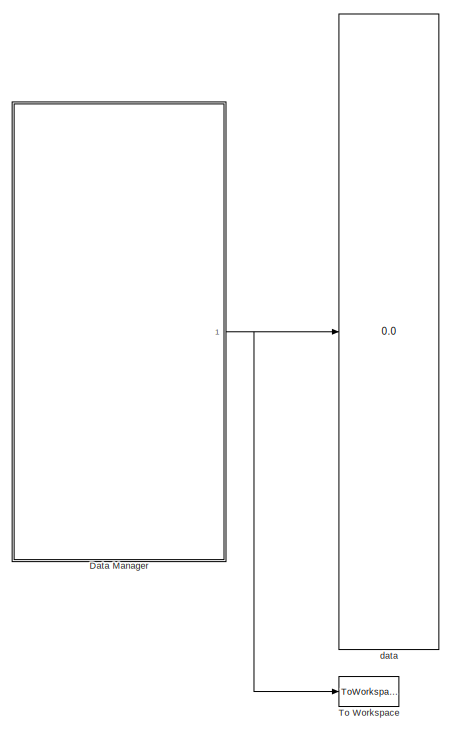
[diagram: root canvas - part 1/3, left side, full height]
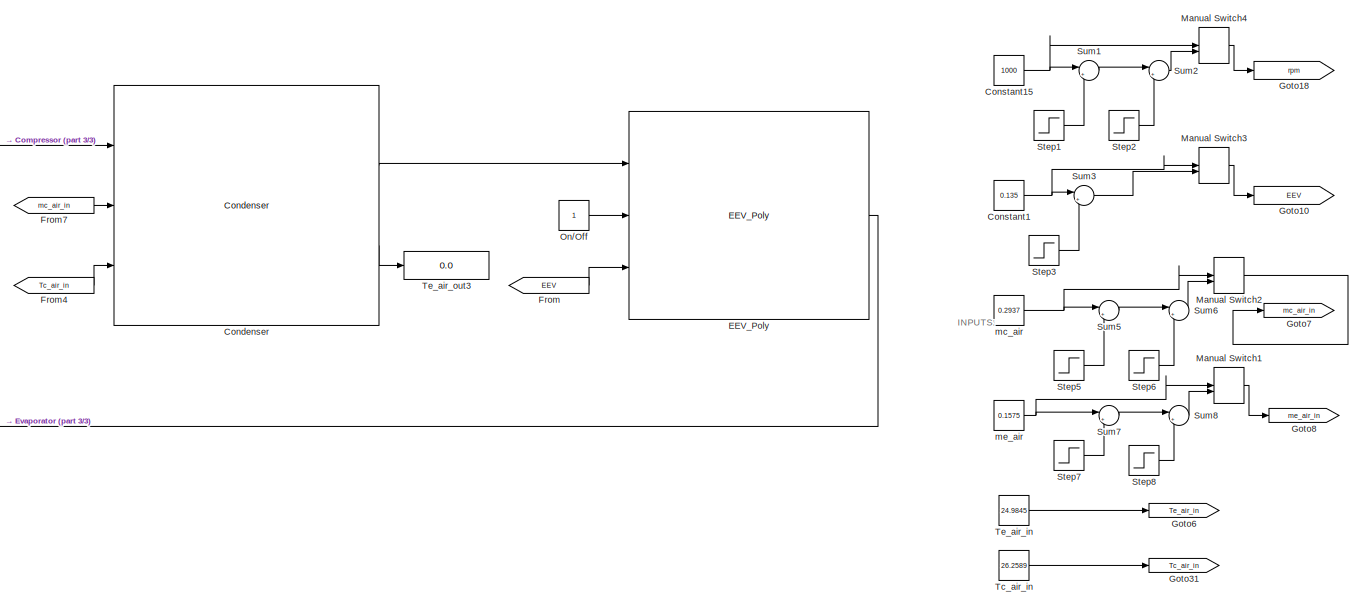
[diagram: root canvas - part 2/3, right side, full height]
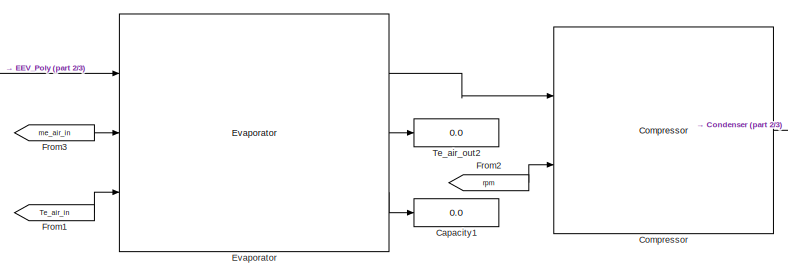
[diagram: root canvas - part 3/3, central region]
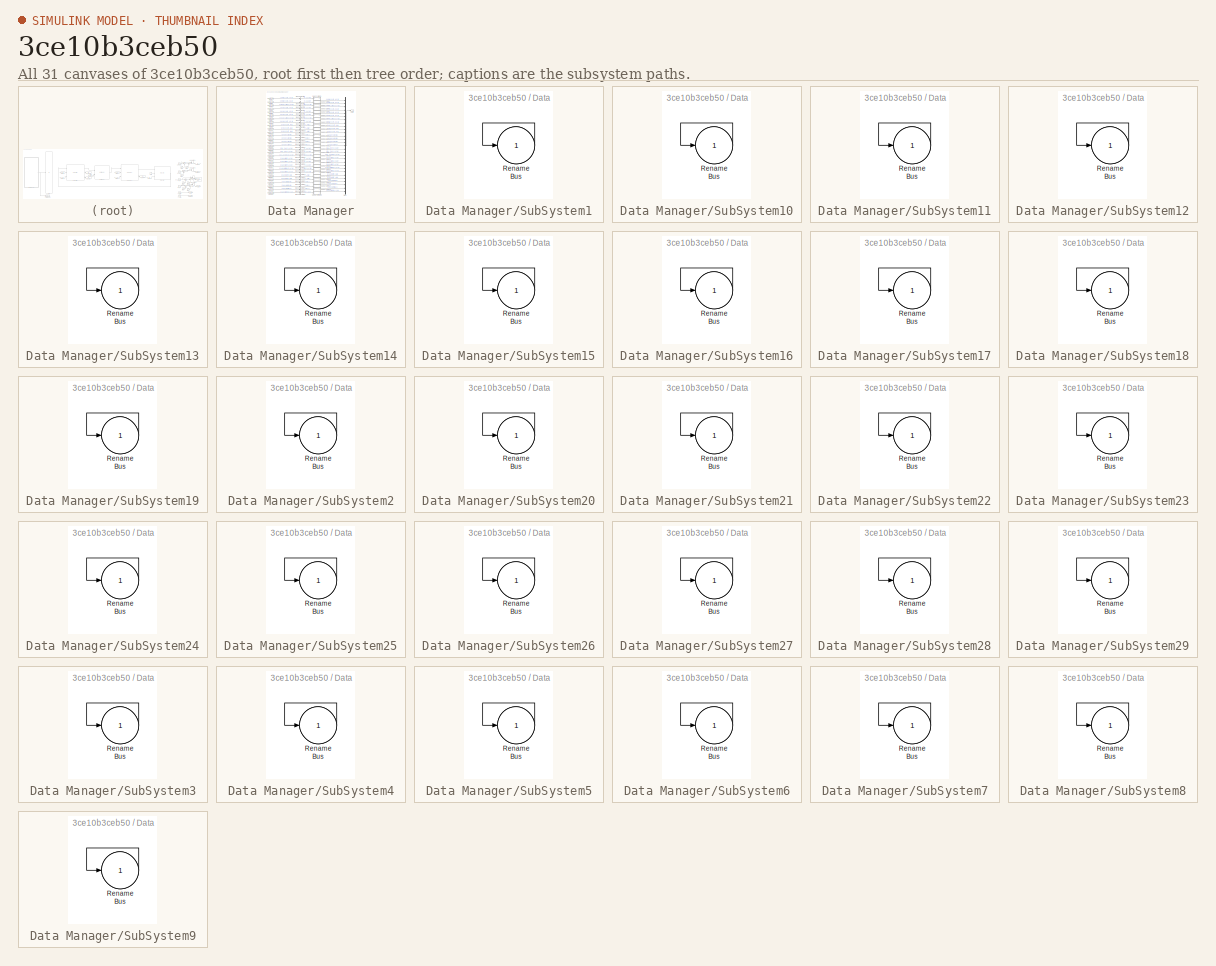
[diagram: thumbnail index - all 31 canvases of the model, root first then tree order]
MODEL slx_3ce10b3ceb50
KIND model
BLOCK [Display] Capacity1
  Decimation = 1
  Ports = [1]
BLOCK [Reference] Compressor  REF=thermosys/Components/Compressor
  CFile = CompProp
  HTC = 25
  IODS = Text
  Pk_ri = 279.1497
  Pk_ro = 968.3655
  Ports = [2, 1]
  REFR = R134a
  SourceBlock = thermosys/Components/Compressor
  SourceType = Variable Speed Compressor
  Tk_ri = 19.9747
  Tk_ro = 61.4005
  Vk = 3.042e-5
  mdot = 0.0062
  rpm = 1500
BLOCK [Reference] Condenser  REF=thermosys/Components/Condenser
  AIT = 25
  Ac_air = .089798964
  Ac_ref = 5.15631e-5
  As_air = 2.792665382
  As_ref = 0.274993
  Cp_wall = .0467
  Dh = 8.1026e-3
  IODS = Text
  L = 10.6895
  MFA = 0.2937
  MFR = 0.0062
  M_wall = 4.65636
  N = 1
  PAF_AIR = 1.2
  PAF_SC = 1
  PAF_SH = 0.5
  PAF_TP = 1
  PREF = 968
  Ports = [3, 2]
  REFR = R134a
  RIT = 61.8
  ROE = 250
  SourceBlock = thermosys/Components/Condenser
  SourceType = Switched State Space Condenser
BLOCK [Constant] Constant1
  Value = 0.135
BLOCK [Constant] Constant15
  Value = 1000
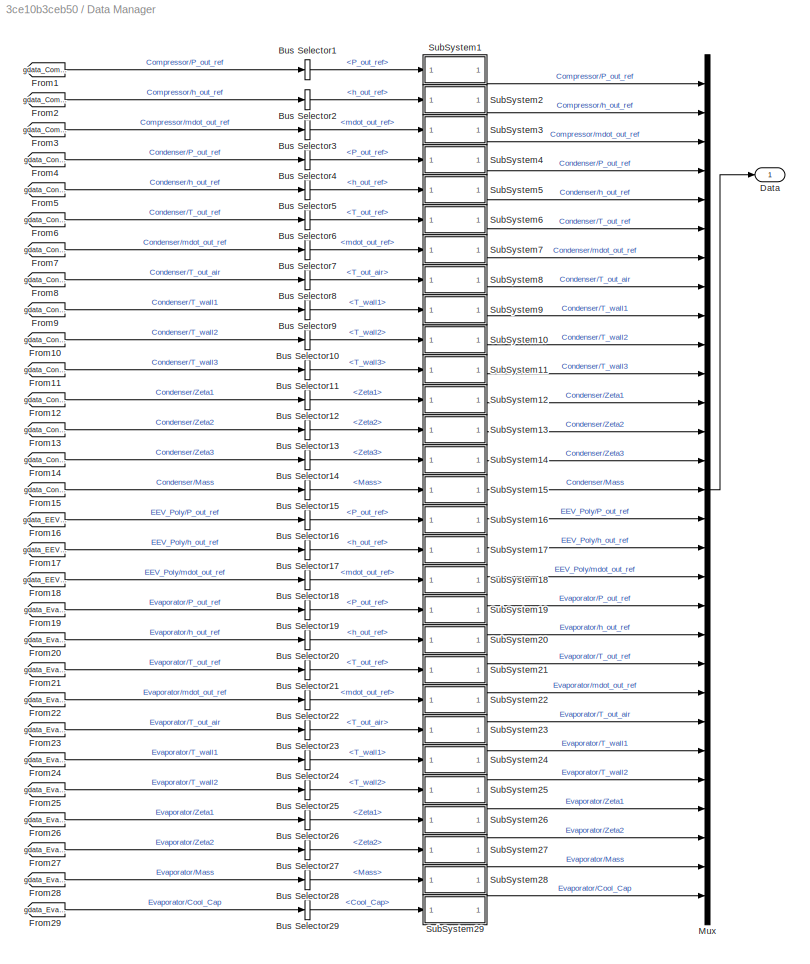
BLOCK [SubSystem] Data Manager
  AncestorBlock = thermosys/Support Components/Data Manager
  OpenFcn = data_manager
  Ports = [0, 1]
  RequestExecContextInheritance = off
  UserDataPersistent = on
BLOCK [BusSelector] Data Manager/Bus Selector1
  OutputSignals = P_out_ref
  Ports = [1, 1]
BLOCK [BusSelector] Data Manager/Bus Selector10
  OutputSignals = T_wall2
  Ports = [1, 1]
BLOCK [BusSelector] Data Manager/Bus Selector11
  OutputSignals = T_wall3
  Ports = [1, 1]
BLOCK [BusSelector] Data Manager/Bus Selector12
  OutputSignals = Zeta1
  Ports = [1, 1]
BLOCK [BusSelector] Data Manager/Bus Selector13
  OutputSignals = Zeta2
  Ports = [1, 1]
BLOCK [BusSelector] Data Manager/Bus Selector14
  OutputSignals = Zeta3
  Ports = [1, 1]
BLOCK [BusSelector] Data Manager/Bus Selector15
  OutputSignals = Mass
  Ports = [1, 1]
BLOCK [BusSelector] Data Manager/Bus Selector16
  OutputSignals = P_out_ref
  Ports = [1, 1]
BLOCK [BusSelector] Data Manager/Bus Selector17
  OutputSignals = h_out_ref
  Ports = [1, 1]
BLOCK [BusSelector] Data Manager/Bus Selector18
  OutputSignals = mdot_out_ref
  Ports = [1, 1]
BLOCK [BusSelector] Data Manager/Bus Selector19
  OutputSignals = P_out_ref
  Ports = [1, 1]
BLOCK [BusSelector] Data Manager/Bus Selector2
  OutputSignals = h_out_ref
  Ports = [1, 1]
BLOCK [BusSelector] Data Manager/Bus Selector20
  OutputSignals = h_out_ref
  Ports = [1, 1]
BLOCK [BusSelector] Data Manager/Bus Selector21
  OutputSignals = T_out_ref
  Ports = [1, 1]
BLOCK [BusSelector] Data Manager/Bus Selector22
  OutputSignals = mdot_out_ref
  Ports = [1, 1]
BLOCK [BusSelector] Data Manager/Bus Selector23
  OutputSignals = T_out_air
  Ports = [1, 1]
BLOCK [BusSelector] Data Manager/Bus Selector24
  OutputSignals = T_wall1
  Ports = [1, 1]
BLOCK [BusSelector] Data Manager/Bus Selector25
  OutputSignals = T_wall2
  Ports = [1, 1]
BLOCK [BusSelector] Data Manager/Bus Selector26
  OutputSignals = Zeta1
  Ports = [1, 1]
BLOCK [BusSelector] Data Manager/Bus Selector27
  OutputSignals = Zeta2
  Ports = [1, 1]
BLOCK [BusSelector] Data Manager/Bus Selector28
  OutputSignals = Mass
  Ports = [1, 1]
BLOCK [BusSelector] Data Manager/Bus Selector29
  OutputSignals = Cool_Cap
  Ports = [1, 1]
BLOCK [BusSelector] Data Manager/Bus Selector3
  OutputSignals = mdot_out_ref
  Ports = [1, 1]
BLOCK [BusSelector] Data Manager/Bus Selector4
  OutputSignals = P_out_ref
  Ports = [1, 1]
BLOCK [BusSelector] Data Manager/Bus Selector5
  OutputSignals = h_out_ref
  Ports = [1, 1]
BLOCK [BusSelector] Data Manager/Bus Selector6
  OutputSignals = T_out_ref
  Ports = [1, 1]
BLOCK [BusSelector] Data Manager/Bus Selector7
  OutputSignals = mdot_out_ref
  Ports = [1, 1]
BLOCK [BusSelector] Data Manager/Bus Selector8
  OutputSignals = T_out_air
  Ports = [1, 1]
BLOCK [BusSelector] Data Manager/Bus Selector9
  OutputSignals = T_wall1
  Ports = [1, 1]
BLOCK [Outport] Data Manager/Data
  IconDisplay = Port number
BLOCK [From] Data Manager/From1
  GotoTag = gdata_CompressorData_Sink
  TagVisibility = global
  UserDataPersistent = on
BLOCK [From] Data Manager/From10
  GotoTag = gdata_CondenserData_Sink1
  TagVisibility = global
  UserDataPersistent = on
BLOCK [From] Data Manager/From11
  GotoTag = gdata_CondenserData_Sink1
  TagVisibility = global
  UserDataPersistent = on
BLOCK [From] Data Manager/From12
  GotoTag = gdata_CondenserData_Sink1
  TagVisibility = global
  UserDataPersistent = on
BLOCK [From] Data Manager/From13
  GotoTag = gdata_CondenserData_Sink1
  TagVisibility = global
  UserDataPersistent = on
BLOCK [From] Data Manager/From14
  GotoTag = gdata_CondenserData_Sink1
  TagVisibility = global
  UserDataPersistent = on
BLOCK [From] Data Manager/From15
  GotoTag = gdata_CondenserData_Sink1
  TagVisibility = global
  UserDataPersistent = on
BLOCK [From] Data Manager/From16
  GotoTag = gdata_EEV_PolyData_Sink1
  TagVisibility = global
  UserDataPersistent = on
BLOCK [From] Data Manager/From17
  GotoTag = gdata_EEV_PolyData_Sink1
  TagVisibility = global
  UserDataPersistent = on
BLOCK [From] Data Manager/From18
  GotoTag = gdata_EEV_PolyData_Sink1
  TagVisibility = global
  UserDataPersistent = on
BLOCK [From] Data Manager/From19
  GotoTag = gdata_EvaporatorData_Sink1
  TagVisibility = global
  UserDataPersistent = on
BLOCK [From] Data Manager/From2
  GotoTag = gdata_CompressorData_Sink
  TagVisibility = global
  UserDataPersistent = on
BLOCK [From] Data Manager/From20
  GotoTag = gdata_EvaporatorData_Sink1
  TagVisibility = global
  UserDataPersistent = on
BLOCK [From] Data Manager/From21
  GotoTag = gdata_EvaporatorData_Sink1
  TagVisibility = global
  UserDataPersistent = on
BLOCK [From] Data Manager/From22
  GotoTag = gdata_EvaporatorData_Sink1
  TagVisibility = global
  UserDataPersistent = on
BLOCK [From] Data Manager/From23
  GotoTag = gdata_EvaporatorData_Sink1
  TagVisibility = global
  UserDataPersistent = on
BLOCK [From] Data Manager/From24
  GotoTag = gdata_EvaporatorData_Sink1
  TagVisibility = global
  UserDataPersistent = on
BLOCK [From] Data Manager/From25
  GotoTag = gdata_EvaporatorData_Sink1
  TagVisibility = global
  UserDataPersistent = on
BLOCK [From] Data Manager/From26
  GotoTag = gdata_EvaporatorData_Sink1
  TagVisibility = global
  UserDataPersistent = on
BLOCK [From] Data Manager/From27
  GotoTag = gdata_EvaporatorData_Sink1
  TagVisibility = global
  UserDataPersistent = on
BLOCK [From] Data Manager/From28
  GotoTag = gdata_EvaporatorData_Sink1
  TagVisibility = global
  UserDataPersistent = on
BLOCK [From] Data Manager/From29
  GotoTag = gdata_EvaporatorData_Sink1
  TagVisibility = global
  UserDataPersistent = on
BLOCK [From] Data Manager/From3
  GotoTag = gdata_CompressorData_Sink
  TagVisibility = global
  UserDataPersistent = on
BLOCK [From] Data Manager/From4
  GotoTag = gdata_CondenserData_Sink1
  TagVisibility = global
  UserDataPersistent = on
BLOCK [From] Data Manager/From5
  GotoTag = gdata_CondenserData_Sink1
  TagVisibility = global
  UserDataPersistent = on
BLOCK [From] Data Manager/From6
  GotoTag = gdata_CondenserData_Sink1
  TagVisibility = global
  UserDataPersistent = on
BLOCK [From] Data Manager/From7
  GotoTag = gdata_CondenserData_Sink1
  TagVisibility = global
  UserDataPersistent = on
BLOCK [From] Data Manager/From8
  GotoTag = gdata_CondenserData_Sink1
  TagVisibility = global
  UserDataPersistent = on
BLOCK [From] Data Manager/From9
  GotoTag = gdata_CondenserData_Sink1
  TagVisibility = global
  UserDataPersistent = on
BLOCK [Mux] Data Manager/Mux
  DisplayOption = bar
  Inputs = 29
  Ports = [29, 1]
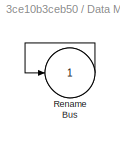
BLOCK [SubSystem] Data Manager/SubSystem1
  Ports = [1, 1]
  RequestExecContextInheritance = off
BLOCK [Outport] Data Manager/SubSystem1/Bus
  IconDisplay = Port number
BLOCK [Inport] Data Manager/SubSystem1/Rename
  IconDisplay = Port number
BLOCK [SubSystem] Data Manager/SubSystem10
  Ports = [1, 1]
  RequestExecContextInheritance = off
BLOCK [Outport] Data Manager/SubSystem10/Bus
  IconDisplay = Port number
BLOCK [Inport] Data Manager/SubSystem10/Rename
  IconDisplay = Port number
BLOCK [SubSystem] Data Manager/SubSystem11
  Ports = [1, 1]
  RequestExecContextInheritance = off
BLOCK [Outport] Data Manager/SubSystem11/Bus
  IconDisplay = Port number
BLOCK [Inport] Data Manager/SubSystem11/Rename
  IconDisplay = Port number
BLOCK [SubSystem] Data Manager/SubSystem12
  Ports = [1, 1]
  RequestExecContextInheritance = off
BLOCK [Outport] Data Manager/SubSystem12/Bus
  IconDisplay = Port number
BLOCK [Inport] Data Manager/SubSystem12/Rename
  IconDisplay = Port number
BLOCK [SubSystem] Data Manager/SubSystem13
  Ports = [1, 1]
  RequestExecContextInheritance = off
BLOCK [Outport] Data Manager/SubSystem13/Bus
  IconDisplay = Port number
BLOCK [Inport] Data Manager/SubSystem13/Rename
  IconDisplay = Port number
BLOCK [SubSystem] Data Manager/SubSystem14
  Ports = [1, 1]
  RequestExecContextInheritance = off
BLOCK [Outport] Data Manager/SubSystem14/Bus
  IconDisplay = Port number
BLOCK [Inport] Data Manager/SubSystem14/Rename
  IconDisplay = Port number
BLOCK [SubSystem] Data Manager/SubSystem15
  Ports = [1, 1]
  RequestExecContextInheritance = off
BLOCK [Outport] Data Manager/SubSystem15/Bus
  IconDisplay = Port number
BLOCK [Inport] Data Manager/SubSystem15/Rename
  IconDisplay = Port number
BLOCK [SubSystem] Data Manager/SubSystem16
  Ports = [1, 1]
  RequestExecContextInheritance = off
BLOCK [Outport] Data Manager/SubSystem16/Bus
  IconDisplay = Port number
BLOCK [Inport] Data Manager/SubSystem16/Rename
  IconDisplay = Port number
BLOCK [SubSystem] Data Manager/SubSystem17
  Ports = [1, 1]
  RequestExecContextInheritance = off
BLOCK [Outport] Data Manager/SubSystem17/Bus
  IconDisplay = Port number
BLOCK [Inport] Data Manager/SubSystem17/Rename
  IconDisplay = Port number
BLOCK [SubSystem] Data Manager/SubSystem18
  Ports = [1, 1]
  RequestExecContextInheritance = off
BLOCK [Outport] Data Manager/SubSystem18/Bus
  IconDisplay = Port number
BLOCK [Inport] Data Manager/SubSystem18/Rename
  IconDisplay = Port number
BLOCK [SubSystem] Data Manager/SubSystem19
  Ports = [1, 1]
  RequestExecContextInheritance = off
BLOCK [Outport] Data Manager/SubSystem19/Bus
  IconDisplay = Port number
BLOCK [Inport] Data Manager/SubSystem19/Rename
  IconDisplay = Port number
BLOCK [SubSystem] Data Manager/SubSystem2
  Ports = [1, 1]
  RequestExecContextInheritance = off
BLOCK [Outport] Data Manager/SubSystem2/Bus
  IconDisplay = Port number
BLOCK [Inport] Data Manager/SubSystem2/Rename
  IconDisplay = Port number
BLOCK [SubSystem] Data Manager/SubSystem20
  Ports = [1, 1]
  RequestExecContextInheritance = off
BLOCK [Outport] Data Manager/SubSystem20/Bus
  IconDisplay = Port number
BLOCK [Inport] Data Manager/SubSystem20/Rename
  IconDisplay = Port number
BLOCK [SubSystem] Data Manager/SubSystem21
  Ports = [1, 1]
  RequestExecContextInheritance = off
BLOCK [Outport] Data Manager/SubSystem21/Bus
  IconDisplay = Port number
BLOCK [Inport] Data Manager/SubSystem21/Rename
  IconDisplay = Port number
BLOCK [SubSystem] Data Manager/SubSystem22
  Ports = [1, 1]
  RequestExecContextInheritance = off
BLOCK [Outport] Data Manager/SubSystem22/Bus
  IconDisplay = Port number
BLOCK [Inport] Data Manager/SubSystem22/Rename
  IconDisplay = Port number
BLOCK [SubSystem] Data Manager/SubSystem23
  Ports = [1, 1]
  RequestExecContextInheritance = off
BLOCK [Outport] Data Manager/SubSystem23/Bus
  IconDisplay = Port number
BLOCK [Inport] Data Manager/SubSystem23/Rename
  IconDisplay = Port number
BLOCK [SubSystem] Data Manager/SubSystem24
  Ports = [1, 1]
  RequestExecContextInheritance = off
BLOCK [Outport] Data Manager/SubSystem24/Bus
  IconDisplay = Port number
BLOCK [Inport] Data Manager/SubSystem24/Rename
  IconDisplay = Port number
BLOCK [SubSystem] Data Manager/SubSystem25
  Ports = [1, 1]
  RequestExecContextInheritance = off
BLOCK [Outport] Data Manager/SubSystem25/Bus
  IconDisplay = Port number
BLOCK [Inport] Data Manager/SubSystem25/Rename
  IconDisplay = Port number
BLOCK [SubSystem] Data Manager/SubSystem26
  Ports = [1, 1]
  RequestExecContextInheritance = off
BLOCK [Outport] Data Manager/SubSystem26/Bus
  IconDisplay = Port number
BLOCK [Inport] Data Manager/SubSystem26/Rename
  IconDisplay = Port number
BLOCK [SubSystem] Data Manager/SubSystem27
  Ports = [1, 1]
  RequestExecContextInheritance = off
BLOCK [Outport] Data Manager/SubSystem27/Bus
  IconDisplay = Port number
BLOCK [Inport] Data Manager/SubSystem27/Rename
  IconDisplay = Port number
BLOCK [SubSystem] Data Manager/SubSystem28
  Ports = [1, 1]
  RequestExecContextInheritance = off
BLOCK [Outport] Data Manager/SubSystem28/Bus
  IconDisplay = Port number
BLOCK [Inport] Data Manager/SubSystem28/Rename
  IconDisplay = Port number
BLOCK [SubSystem] Data Manager/SubSystem29
  Ports = [1, 1]
  RequestExecContextInheritance = off
BLOCK [Outport] Data Manager/SubSystem29/Bus
  IconDisplay = Port number
BLOCK [Inport] Data Manager/SubSystem29/Rename
  IconDisplay = Port number
BLOCK [SubSystem] Data Manager/SubSystem3
  Ports = [1, 1]
  RequestExecContextInheritance = off
BLOCK [Outport] Data Manager/SubSystem3/Bus
  IconDisplay = Port number
BLOCK [Inport] Data Manager/SubSystem3/Rename
  IconDisplay = Port number
BLOCK [SubSystem] Data Manager/SubSystem4
  Ports = [1, 1]
  RequestExecContextInheritance = off
BLOCK [Outport] Data Manager/SubSystem4/Bus
  IconDisplay = Port number
BLOCK [Inport] Data Manager/SubSystem4/Rename
  IconDisplay = Port number
BLOCK [SubSystem] Data Manager/SubSystem5
  Ports = [1, 1]
  RequestExecContextInheritance = off
BLOCK [Outport] Data Manager/SubSystem5/Bus
  IconDisplay = Port number
BLOCK [Inport] Data Manager/SubSystem5/Rename
  IconDisplay = Port number
BLOCK [SubSystem] Data Manager/SubSystem6
  Ports = [1, 1]
  RequestExecContextInheritance = off
BLOCK [Outport] Data Manager/SubSystem6/Bus
  IconDisplay = Port number
BLOCK [Inport] Data Manager/SubSystem6/Rename
  IconDisplay = Port number
BLOCK [SubSystem] Data Manager/SubSystem7
  Ports = [1, 1]
  RequestExecContextInheritance = off
BLOCK [Outport] Data Manager/SubSystem7/Bus
  IconDisplay = Port number
BLOCK [Inport] Data Manager/SubSystem7/Rename
  IconDisplay = Port number
BLOCK [SubSystem] Data Manager/SubSystem8
  Ports = [1, 1]
  RequestExecContextInheritance = off
BLOCK [Outport] Data Manager/SubSystem8/Bus
  IconDisplay = Port number
BLOCK [Inport] Data Manager/SubSystem8/Rename
  IconDisplay = Port number
BLOCK [SubSystem] Data Manager/SubSystem9
  Ports = [1, 1]
  RequestExecContextInheritance = off
BLOCK [Outport] Data Manager/SubSystem9/Bus
  IconDisplay = Port number
BLOCK [Inport] Data Manager/SubSystem9/Rename
  IconDisplay = Port number
BLOCK [Reference] EEV_Poly  REF=thermosys/Components/EEV_Poly
  IODS = Text
  Ports = [3, 1]
  REFR = R134a
  SourceBlock = thermosys/Components/EEV_Poly
  SourceType = EEV (Polynomial)
  cv_fraction = [0:0.1:1].*(2.0-[0:0.1:1])
  cv_max = 4e-5
  p1 = -2e-13
  p2 = 5.6e-13
  p3 = -5.8e-13
  p4 = 2.6e-13
  p5 = -1
  p6 = 2
  p7 = 1.1e-16
  stroke_fraction = [0:0.1:1]
BLOCK [Reference] Evaporator  REF=thermosys/Components/Evaporator
  AIT = 25
  Ac_air = .058384399
  Ac_ref = 5.15631e-5
  As_air = 3.068019456
  As_ref = .0291662649
  Cp_wall = 0.48772265
  Dh = 8.126e-3
  HREFIN = 245
  IODS = Text
  L = 11.45794
  MFA = 0.105
  MFR = 0.0062
  M_wall = 2.7438213
  N = 1
  PAF_AIR = 1.1
  PAF_SH = 2
  PAF_TP = 1
  PREF = 295.3
  Ports = [3, 3]
  REFR = R134a
  SourceBlock = thermosys/Components/Evaporator
  SourceType = Switched State Space Evaporator
  TRO = 12
BLOCK [From] From
  CloseFcn = tagdialog Close
  GotoTag = EEV
BLOCK [From] From1
  CloseFcn = tagdialog Close
  GotoTag = Te_air_in
BLOCK [From] From2
  CloseFcn = tagdialog Close
  GotoTag = rpm
BLOCK [From] From3
  CloseFcn = tagdialog Close
  GotoTag = me_air_in
BLOCK [From] From4
  CloseFcn = tagdialog Close
  GotoTag = Tc_air_in
BLOCK [From] From7
  CloseFcn = tagdialog Close
  GotoTag = mc_air_in
BLOCK [Goto] Goto10
  GotoTag = EEV
BLOCK [Goto] Goto18
  GotoTag = rpm
BLOCK [Goto] Goto31
  GotoTag = Tc_air_in
BLOCK [Goto] Goto6
  GotoTag = Te_air_in
BLOCK [Goto] Goto7
  GotoTag = mc_air_in
BLOCK [Goto] Goto8
  GotoTag = me_air_in
BLOCK [ManualSwitch] Manual Switch1
BLOCK [ManualSwitch] Manual Switch2
BLOCK [ManualSwitch] Manual Switch3
BLOCK [ManualSwitch] Manual Switch4
BLOCK [Constant] On//Off
BLOCK [Step] Step1
  After = -1500
  SampleTime = 0
  Time = 100
BLOCK [Step] Step2
  After = 1500
  SampleTime = 0
  Time = 500
BLOCK [Step] Step3
  After = -0.06
  SampleTime = 0
  Time = 100
BLOCK [Step] Step5
  After = -0.2937
  SampleTime = 0
  Time = 100
BLOCK [Step] Step6
  After = 0.2937
  SampleTime = 0
  Time = 500
BLOCK [Step] Step7
  After = -0.105
  SampleTime = 0
  Time = 100
BLOCK [Step] Step8
  After = 0.105
  SampleTime = 0
  Time = 500
BLOCK [Sum] Sum1
  IconShape = round
  InputSameDT = off
  Inputs = |++
  OutDataTypeStr = Inherit: Inherit via internal rule
  Ports = [2, 1]
  SaturateOnIntegerOverflow = off
BLOCK [Sum] Sum2
  IconShape = round
  InputSameDT = off
  Inputs = |++
  OutDataTypeStr = Inherit: Inherit via internal rule
  Ports = [2, 1]
  SaturateOnIntegerOverflow = off
BLOCK [Sum] Sum3
  IconShape = round
  InputSameDT = off
  Inputs = |++
  OutDataTypeStr = Inherit: Inherit via internal rule
  Ports = [2, 1]
  SaturateOnIntegerOverflow = off
BLOCK [Sum] Sum5
  IconShape = round
  InputSameDT = off
  Inputs = |++
  OutDataTypeStr = Inherit: Inherit via internal rule
  Ports = [2, 1]
  SaturateOnIntegerOverflow = off
BLOCK [Sum] Sum6
  IconShape = round
  InputSameDT = off
  Inputs = |++
  OutDataTypeStr = Inherit: Inherit via internal rule
  Ports = [2, 1]
  SaturateOnIntegerOverflow = off
BLOCK [Sum] Sum7
  IconShape = round
  InputSameDT = off
  Inputs = |++
  OutDataTypeStr = Inherit: Inherit via internal rule
  Ports = [2, 1]
  SaturateOnIntegerOverflow = off
BLOCK [Sum] Sum8
  IconShape = round
  InputSameDT = off
  Inputs = |++
  OutDataTypeStr = Inherit: Inherit via internal rule
  Ports = [2, 1]
  SaturateOnIntegerOverflow = off
BLOCK [Constant] Tc_air_in
  Value = 26.2589
BLOCK [Constant] Te_air_in
  Value = 24.9845
BLOCK [Display] Te_air_out2
  Decimation = 1
  Ports = [1]
BLOCK [Display] Te_air_out3
  Decimation = 1
  Ports = [1]
BLOCK [ToWorkspace] To Workspace
  FixptAsFi = on
  MaxDataPoints = inf
  Ports = [1]
  SampleTime = -1
  Save2DSignal = 3-D array (concatenate along third dimension)
  SaveFormat = Timeseries
  VariableName = simoutl135
BLOCK [Display] data
  Decimation = 1
  Ports = [1]
BLOCK [Constant] mc_air
  Value = 0.2937
BLOCK [Constant] me_air
  Value = 0.1575
ANNOTATION (root): INPUTS:
LINE Compressor:1 -> Condenser:1
LINE Condenser:1 -> EEV_Poly:1
LINE Condenser:2 -> Te_air_out3:1
NET Constant15:1 -> Manual Switch4:1, Sum1:1
NET Constant1:1 -> Manual Switch3:1, Sum3:1
NET Data Manager:1 -> To Workspace:1, data:1
LINE EEV_Poly:1 -> Evaporator:1
LINE Evaporator:1 -> Compressor:1
LINE Evaporator:2 -> Te_air_out2:1
LINE Evaporator:3 -> Capacity1:1
LINE From1:1 -> Evaporator:3
LINE From2:1 -> Compressor:2
LINE From3:1 -> Evaporator:2
LINE From4:1 -> Condenser:3
LINE From7:1 -> Condenser:2
LINE From:1 -> EEV_Poly:3
LINE Manual Switch1:1 -> Goto8:1
LINE Manual Switch2:1 -> Goto7:1
LINE Manual Switch3:1 -> Goto10:1
LINE Manual Switch4:1 -> Goto18:1
LINE On//Off:1 -> EEV_Poly:2
LINE Step1:1 -> Sum1:2
LINE Step2:1 -> Sum2:2
LINE Step3:1 -> Sum3:2
LINE Step5:1 -> Sum5:2
LINE Step6:1 -> Sum6:2
LINE Step7:1 -> Sum7:2
LINE Step8:1 -> Sum8:2
LINE Sum1:1 -> Sum2:1
LINE Sum2:1 -> Manual Switch4:2
LINE Sum3:1 -> Manual Switch3:2
LINE Sum5:1 -> Sum6:1
LINE Sum6:1 -> Manual Switch2:2
LINE Sum7:1 -> Sum8:1
LINE Sum8:1 -> Manual Switch1:2
LINE Tc_air_in:1 -> Goto31:1
LINE Te_air_in:1 -> Goto6:1
NET mc_air:1 -> Manual Switch2:1, Sum5:1
NET me_air:1 -> Manual Switch1:1, Sum7:1
note: NET lines group one-source signal fan-out (src -> all destinations, sorted); 1:1 wires keep LINE
